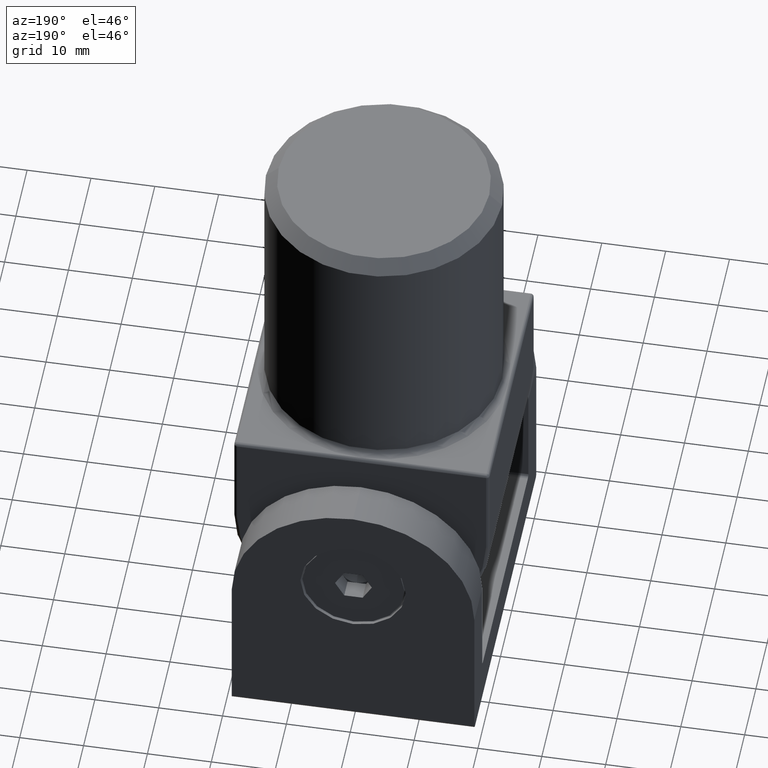
[diagram: clean part render]
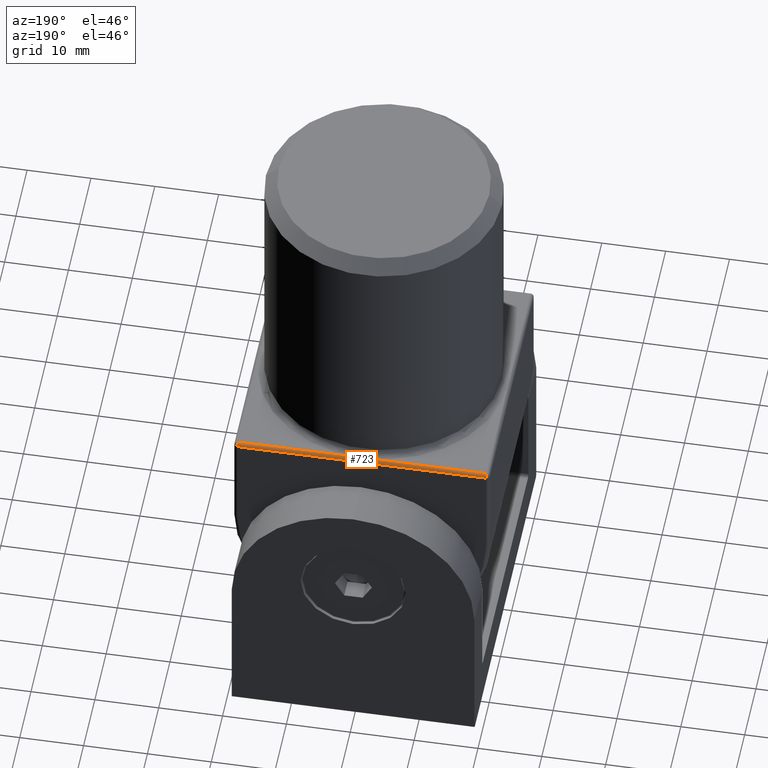
[diagram: same view with one face highlighted and labeled with its STEP entity id]
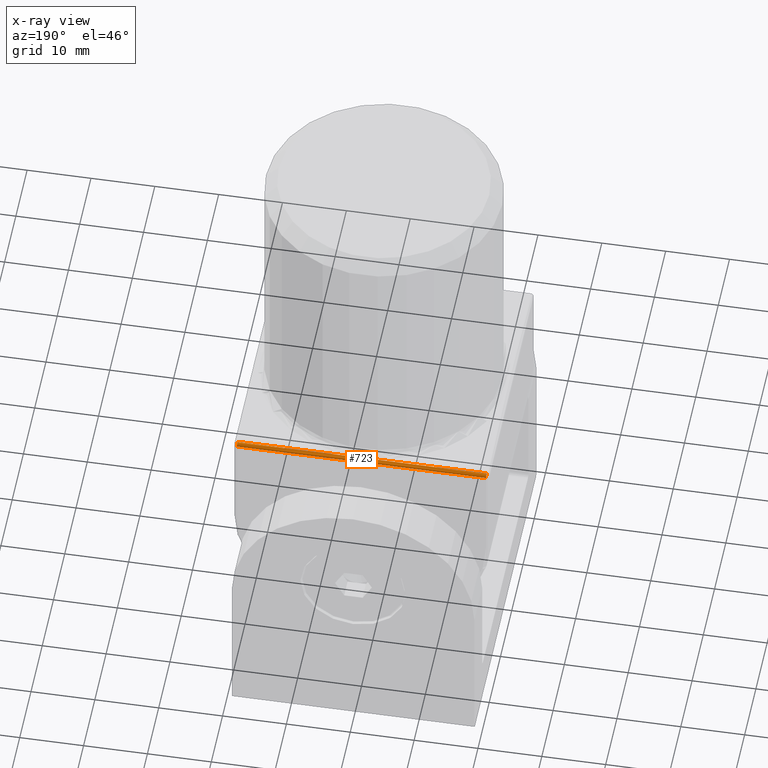
[diagram: x-ray of the same camera — body ghosted, the highlighted face saturated]
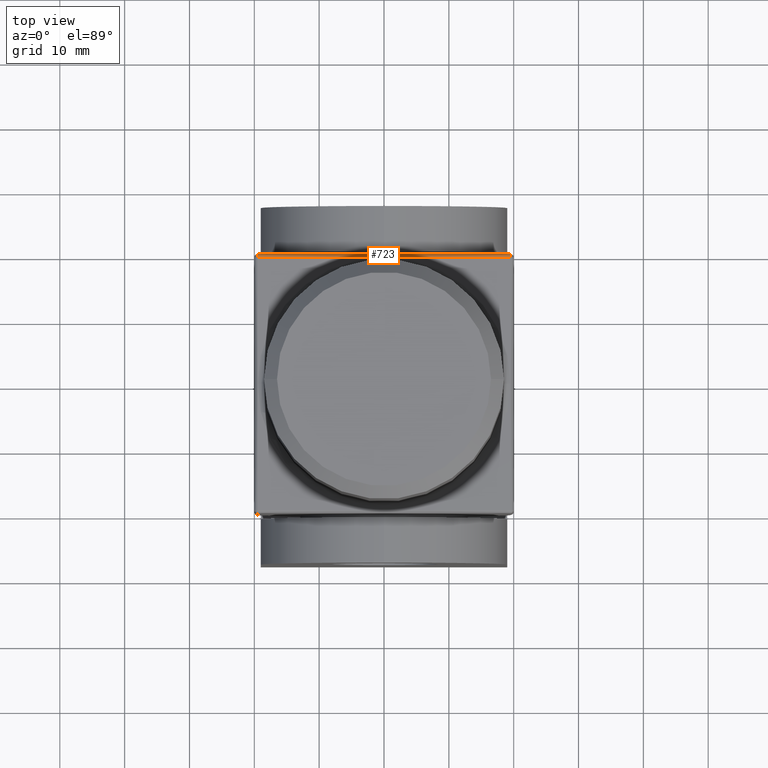
[diagram: same view with one face highlighted and labeled with its STEP entity id]
A machine part, auxiliary view. The second image highlights one B-rep face of the part: STEP entity #723.
The next image is the same camera in x-ray: the body ghosted, the highlighted face saturated — about 0% of this face is hidden behind the body in this view.
A second angle (top view) of the same face is appended — the face is thin or edge-on in the first view.
In plain terms, the highlighted cylindrical surface (edge-blend (fillet) strip) has radius 0.5 mm, axis along (-1, 0, 0).
Its self-contained STEP definition (entity closure, byte-faithful):
#44 = CIRCLE ( 'NONE', #12082, 0.5000000000000000000 ) ;
#366 = DIRECTION ( 'NONE',  ( -1.000000000000000000, -0.000000000000000000, -0.000000000000000000 ) ) ;
#672 = VECTOR ( 'NONE', #11040, 1000.000000000000000 ) ;
#723 = ADVANCED_FACE ( 'NONE', ( #18023 ), #11655, .T. ) ;
#781 = EDGE_CURVE ( 'NONE', #11761, #7505, #15976, .T. ) ;
#839 = DIRECTION ( 'NONE',  ( -1.000000000000000000, 0.000000000000000000, 0.000000000000000000 ) ) ;
#1051 = AXIS2_PLACEMENT_3D ( 'NONE', #7462, #366, #1742 ) ;
#1428 = CARTESIAN_POINT ( 'NONE',  ( -19.50000000000000000, 20.00000000000000000, -0.5000000000000004441 ) ) ;
#1742 = DIRECTION ( 'NONE',  ( 0.000000000000000000, 0.000000000000000000, -1.000000000000000000 ) ) ;
#2657 = DIRECTION ( 'NONE',  ( -1.000000000000000000, -0.000000000000000000, -0.000000000000000000 ) ) ;
#2996 = CARTESIAN_POINT ( 'NONE',  ( -19.50000000000000000, 19.50000000000000000, 0.000000000000000000 ) ) ;
#3126 = VERTEX_POINT ( 'NONE', #18387 ) ;
#3536 = VERTEX_POINT ( 'NONE', #16689 ) ;
#3701 = CARTESIAN_POINT ( 'NONE',  ( 0.000000000000000000, 19.50000000000000000, 0.000000000000000000 ) ) ;
#4274 = DIRECTION ( 'NONE',  ( 0.000000000000000000, 0.000000000000000000, 1.000000000000000000 ) ) ;
#4878 = VECTOR ( 'NONE', #2657, 1000.000000000000000 ) ;
#4898 = ORIENTED_EDGE ( 'NONE', *, *, #781, .F. ) ;
#5379 = EDGE_CURVE ( 'NONE', #7505, #7345, #44, .T. ) ;
#6930 = AXIS2_PLACEMENT_3D ( 'NONE', #8245, #9530, #4274 ) ;
#7345 = VERTEX_POINT ( 'NONE', #1428 ) ;
#7381 = ORIENTED_EDGE ( 'NONE', *, *, #11719, .F. ) ;
#7409 = CARTESIAN_POINT ( 'NONE',  ( 20.00000000000000000, 20.00000000000000000, -0.5000000000000004441 ) ) ;
#7462 = CARTESIAN_POINT ( 'NONE',  ( 19.50000000000000000, 19.50000000000000000, -0.5000000000000004441 ) ) ;
#7505 = VERTEX_POINT ( 'NONE', #2996 ) ;
#8245 = CARTESIAN_POINT ( 'NONE',  ( 0.000000000000000000, 19.50000000000000000, -0.5000000000000004441 ) ) ;
#8746 = LINE ( 'NONE', #10969, #672 ) ;
#9352 = EDGE_CURVE ( 'NONE', #3536, #3126, #11024, .T. ) ;
#9530 = DIRECTION ( 'NONE',  ( -1.000000000000000000, 0.000000000000000000, 0.000000000000000000 ) ) ;
#9989 = EDGE_LOOP ( 'NONE', ( #18306, #17822, #17718, #4898, #7381 ) ) ;
#10969 = CARTESIAN_POINT ( 'NONE',  ( -20.00000000000000000, 19.50000000000000000, 0.000000000000000000 ) ) ;
#11024 = CIRCLE ( 'NONE', #1051, 0.5000000000000000000 ) ;
#11040 = DIRECTION ( 'NONE',  ( -1.000000000000000000, -0.000000000000000000, -0.000000000000000000 ) ) ;
#11655 = CYLINDRICAL_SURFACE ( 'NONE', #6930, 0.5000000000000000000 ) ;
#11719 = EDGE_CURVE ( 'NONE', #3536, #11761, #8746, .T. ) ;
#11761 = VERTEX_POINT ( 'NONE', #3701 ) ;
#12082 = AXIS2_PLACEMENT_3D ( 'NONE', #15369, #839, #18236 ) ;
#12331 = EDGE_CURVE ( 'NONE', #7345, #3126, #16059, .T. ) ;
#12824 = CARTESIAN_POINT ( 'NONE',  ( -20.00000000000000000, 19.50000000000000000, 0.000000000000000000 ) ) ;
#13318 = DIRECTION ( 'NONE',  ( 1.000000000000000000, -0.000000000000000000, 0.000000000000000000 ) ) ;
#15369 = CARTESIAN_POINT ( 'NONE',  ( -19.50000000000000000, 19.50000000000000000, -0.5000000000000000000 ) ) ;
#15607 = VECTOR ( 'NONE', #13318, 1000.000000000000000 ) ;
#15976 = LINE ( 'NONE', #12824, #4878 ) ;
#16059 = LINE ( 'NONE', #7409, #15607 ) ;
#16689 = CARTESIAN_POINT ( 'NONE',  ( 19.50000000000000000, 19.50000000000000000, 0.000000000000000000 ) ) ;
#17718 = ORIENTED_EDGE ( 'NONE', *, *, #5379, .F. ) ;
#17822 = ORIENTED_EDGE ( 'NONE', *, *, #12331, .F. ) ;
#18023 = FACE_OUTER_BOUND ( 'NONE', #9989, .T. ) ;
#18236 = DIRECTION ( 'NONE',  ( 0.000000000000000000, 0.000000000000000000, 1.000000000000000000 ) ) ;
#18306 = ORIENTED_EDGE ( 'NONE', *, *, #9352, .T. ) ;
#18387 = CARTESIAN_POINT ( 'NONE',  ( 19.50000000000000000, 20.00000000000000000, -0.5000000000000004441 ) ) ;